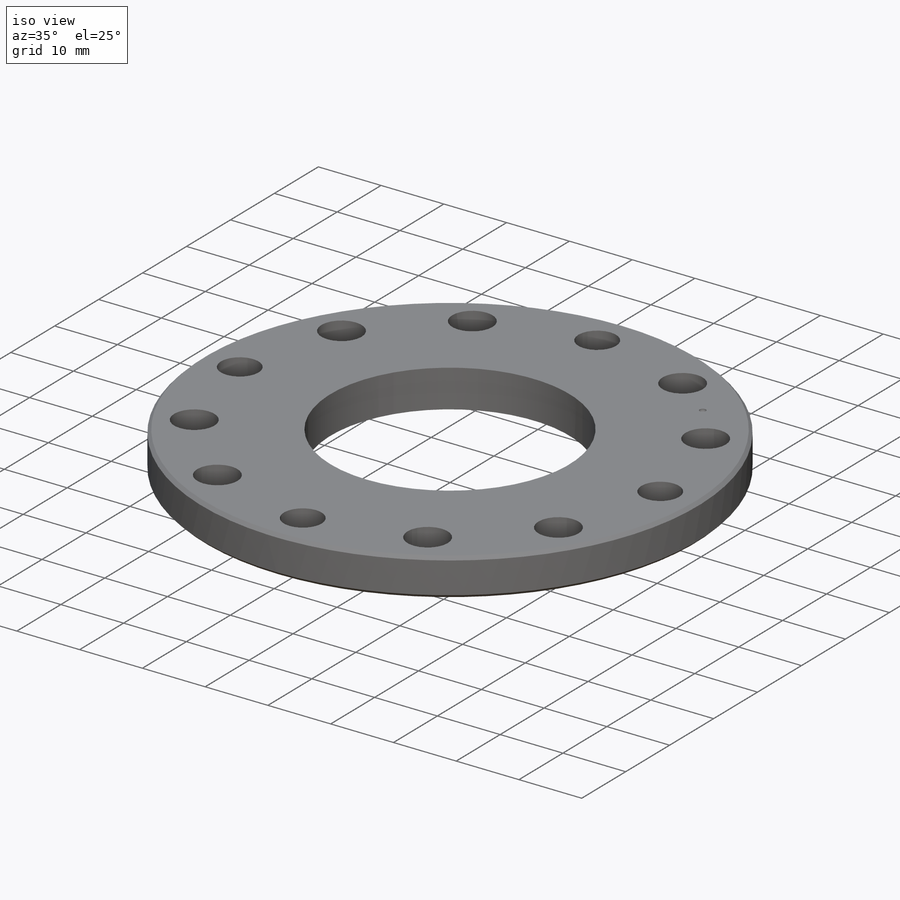
[diagram: iso view]
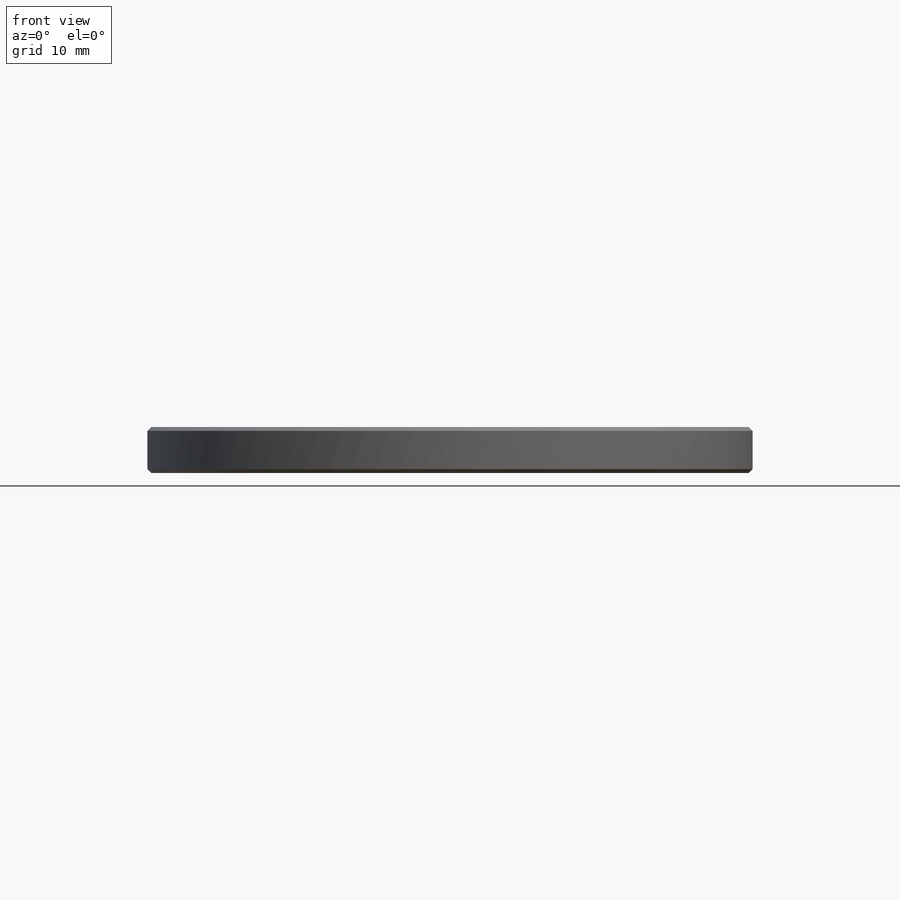
[diagram: front view]
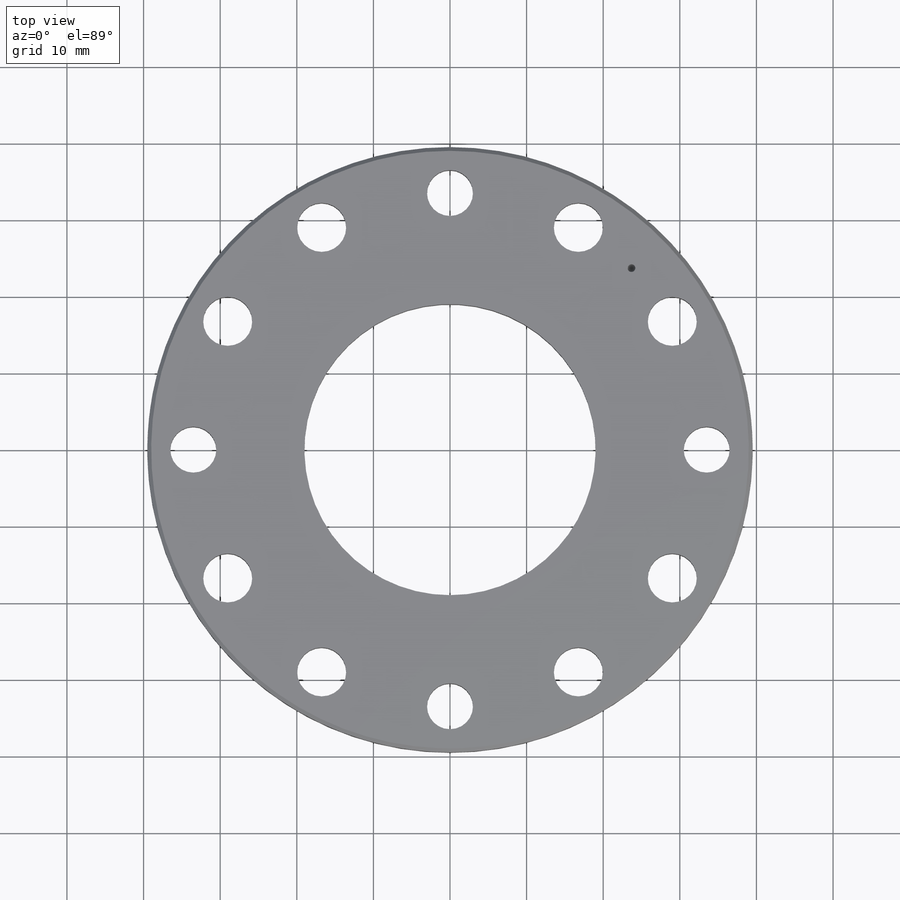
[diagram: top view]
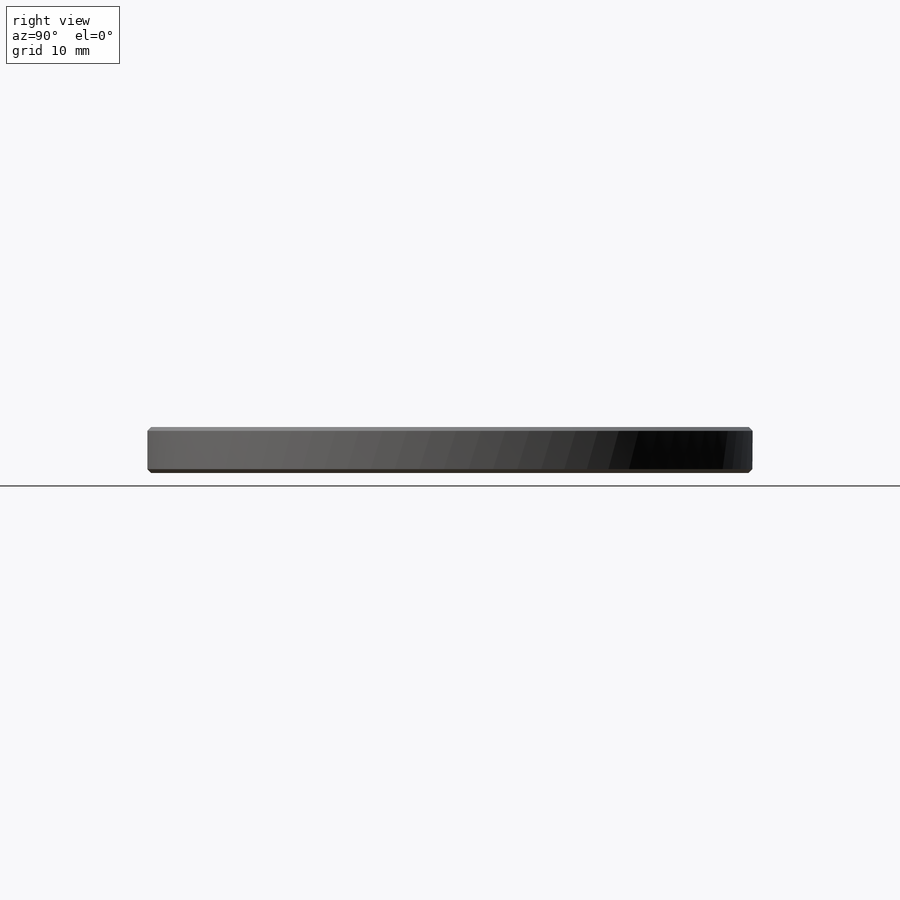
[diagram: right view]
SOLIDWORKS PART (.sldprt)
format: sldprt  version: not decoded by parser v0  size: 205,312 bytes
history: native  units: mm
features: sketch x4, plane x3, material x1, extrude x1, hole x1, chamfer x1, cut_revolve x1 + 4 further entries (+8 scaffold rows collapsed)
feature tree (24):
  scaffold x8  (default folders/planes/origin — collapsed)
  material  " 09Г2С ГОСТ 4543-71"
  plane  "Спереди"
  plane  "Сверху"
  plane  "Слева"
  "Начало координат"
  "PTricksFreeParameters"
  "PTricksEqu"
  "PTricksFreeParameters"
  sketch  "Эскиз1"  dims[c1.D1=~112.87439mm c1.D2=79.0mm c1.D3=38.0mm c1.D4=6.0mm c2.D1=6.0mm]
  extrude  "Вытянуть1"  Depth=6mm
  hole  "Отверстие с зазором M61"  [1 undecoded]
  sketch  "Эскиз4"
  sketch  "Эскиз3"  dims[hole-wizard template sketch: 59 standard entries collapsed; hole parameters kept: c18.Диаметр сквозного отверстия=6.4mm c18.Глубина сквозного отверстия=6.0mm]
  chamfer  "Фаска1"  Distance=0.5mm Angle=45deg
  sketch  "Эскиз5"  dims[c1.D2=0.5mm c1.D1=~44.060867mm c2.D1=225.0deg]
  cut_revolve  "Вырез-Повернуть1"  Angle=360deg
decode coverage: 6 of 8 modeling features carry decoded parameters; 4 rows unclassified (native names shown)
note: ~ marks probable driven/reference dimensions
note: 1 parameter value undecoded
note: suppression state not decoded; provenance and decode notes live in map.json
